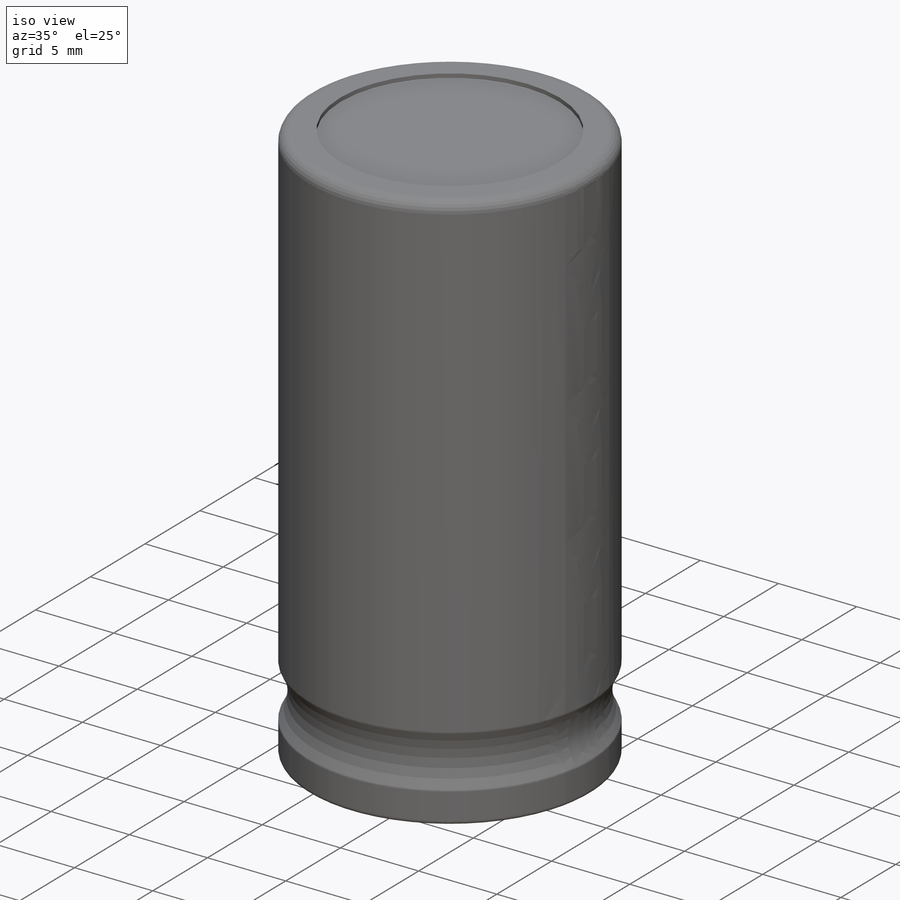
[diagram: iso view]
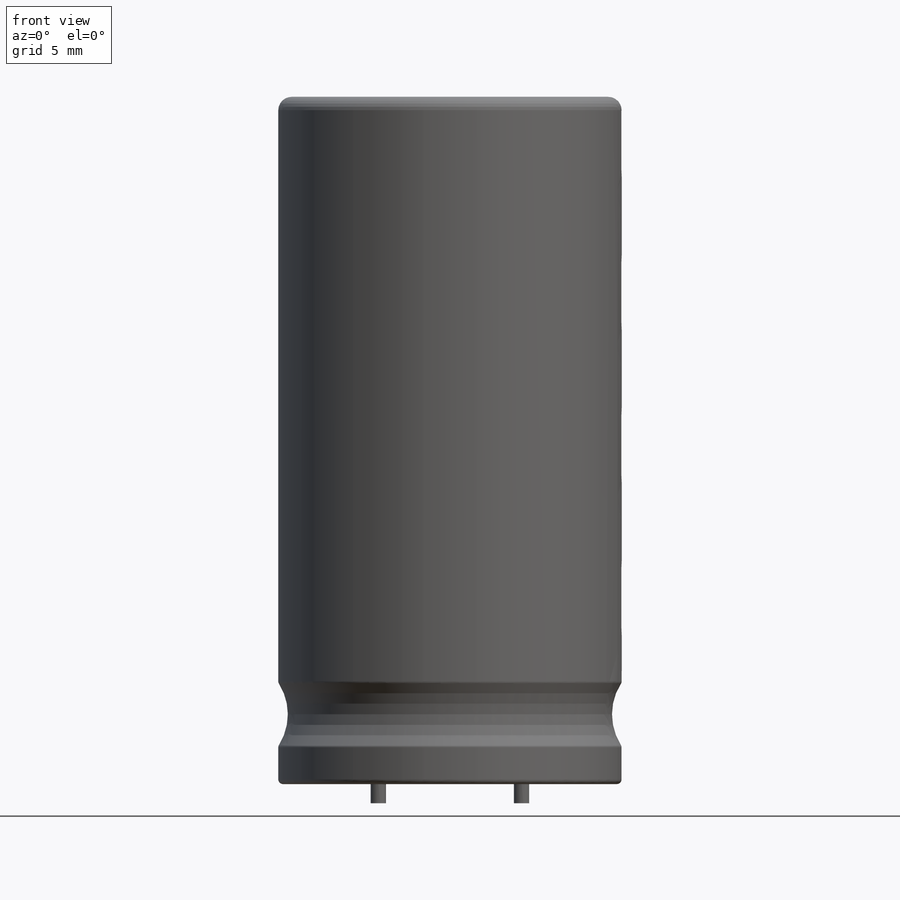
[diagram: front view]
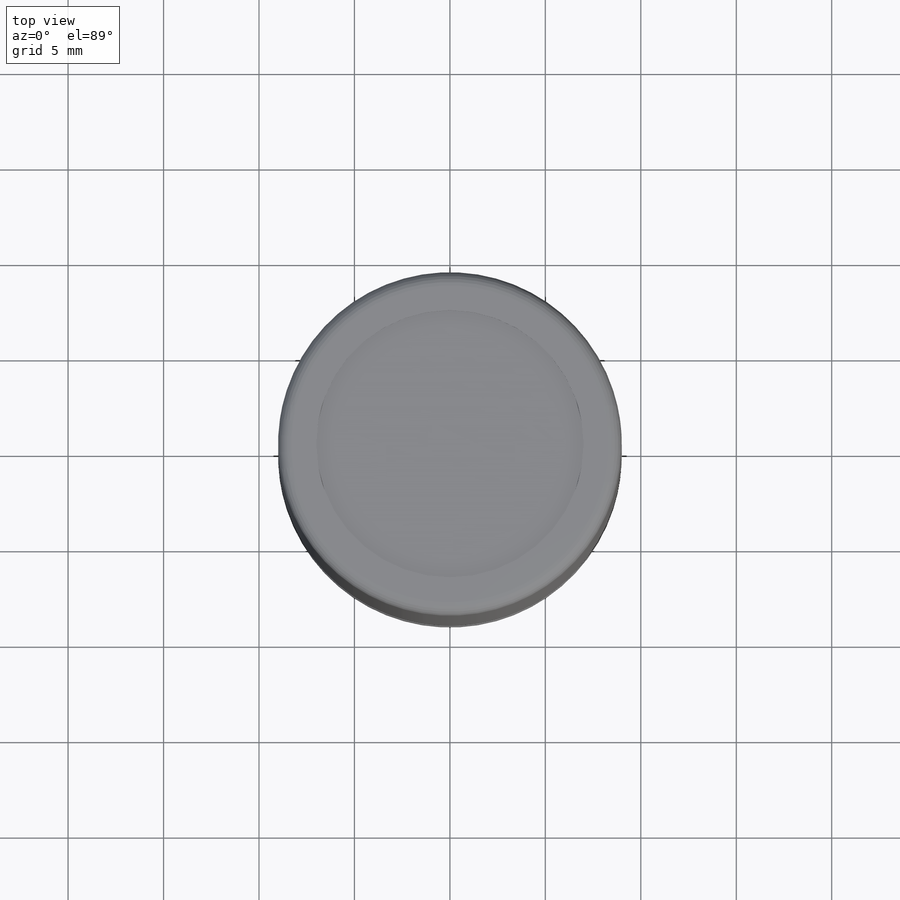
[diagram: top view]
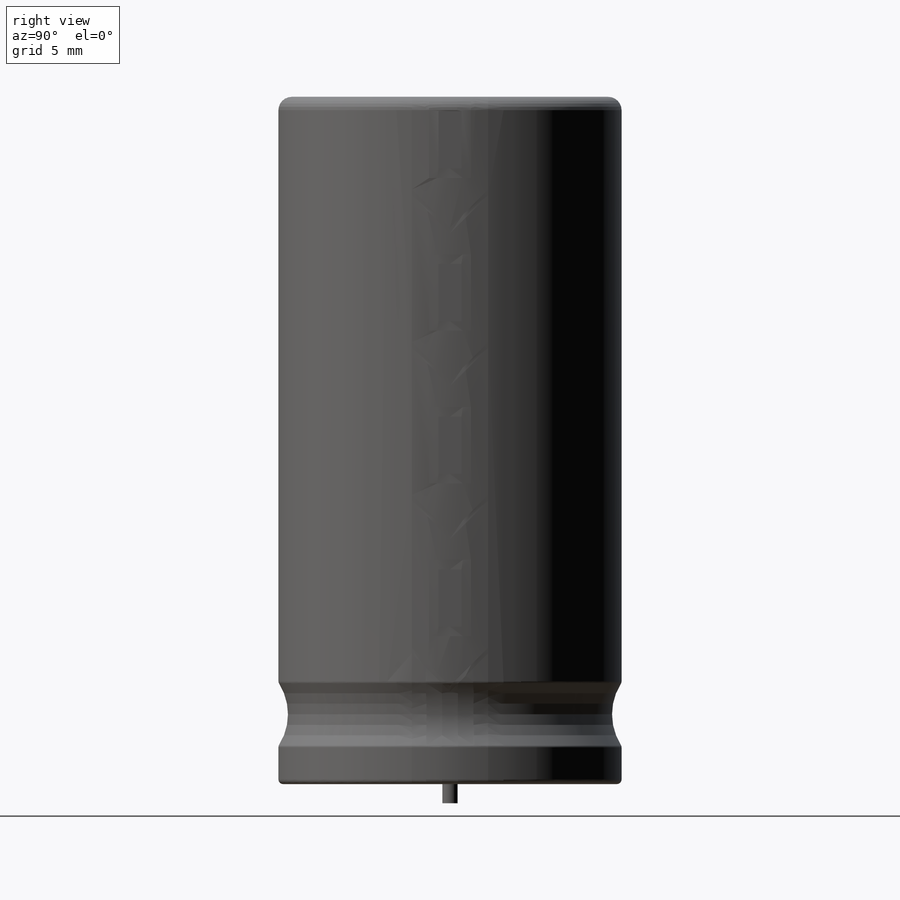
[diagram: right view]
SOLIDWORKS PART (.sldprt)
format: sldprt  version: not decoded by parser v0  size: 502,784 bytes
history: native  units: mm
features: sketch x4, material x1, revolve x1, extrude x1 (+16 scaffold rows collapsed)
feature tree (23):
  scaffold x16  (default folders/planes/origin — collapsed)
  material  "Material <not specified>"
  sketch  "Sketch1"  dims[c1.D5=3.0mm c1.D8=0.25mm c1.D9=0.25mm c2.D8=0.7mm c2.D9=0.25mm c2.D1=36.0mm c2.D2=0.25mm c2.D3=2.0mm c2.D4=9.0mm c2.D6=2.5mm c2.D7=2.0mm]
  revolve  "Revolve1"  Angle=360deg
  sketch  "Sketch2"  dims[D1=4.0mm]
  sketch  "Sketch3"  dims[c1.D1=4.0mm c1.D2=3.0mm c1.D3=2.2mm c1.D4=1.2mm c1.D5=0.5mm c1.D6=0.5mm c1.D7=0.5mm c1.D8=0.5mm c1.D9=0.25mm c1.D10=4.0mm c1.D11=4.0mm c1.D12=4.0mm c1.D13=0.3mm c1.D14=0.3mm c1.D15=~2.018231mm c2.D15=90.0deg c2.D16=2.6mm c2.D17=1.2mm c2.D18=1.1mm c3.D17=4.0 c3.Split Line2=65536.0]
  sketch  "Sketch4"  dims[D1=0.8mm D2=0.8mm D3=7.5mm]
  extrude  "Boss-Extrude1"  Depth=1mm
decode coverage: 6 of 6 modeling features carry decoded parameters
note: ~ marks probable driven/reference dimensions
note: suppression state not decoded; provenance and decode notes live in map.json
